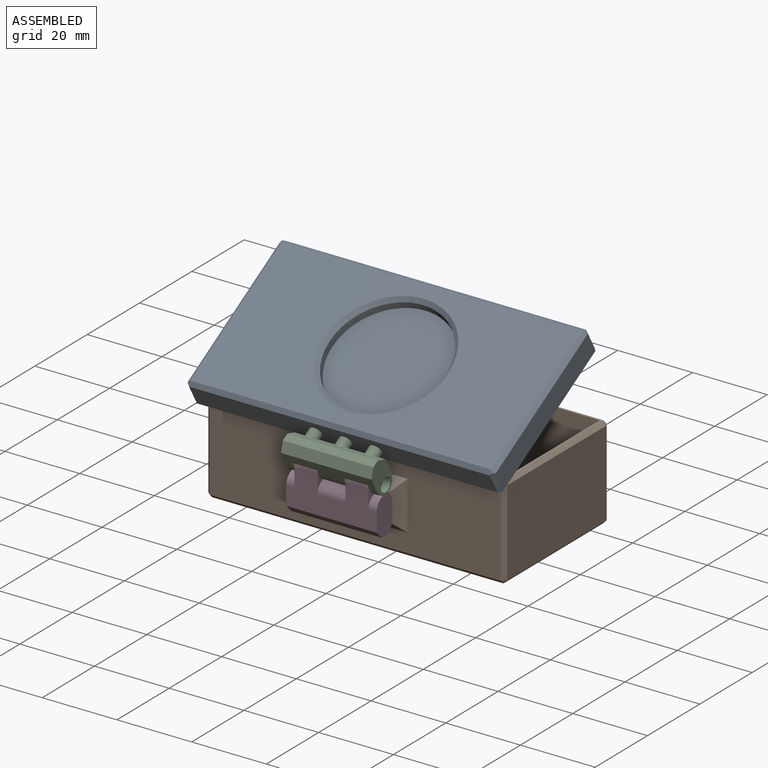
[diagram: assembled view]
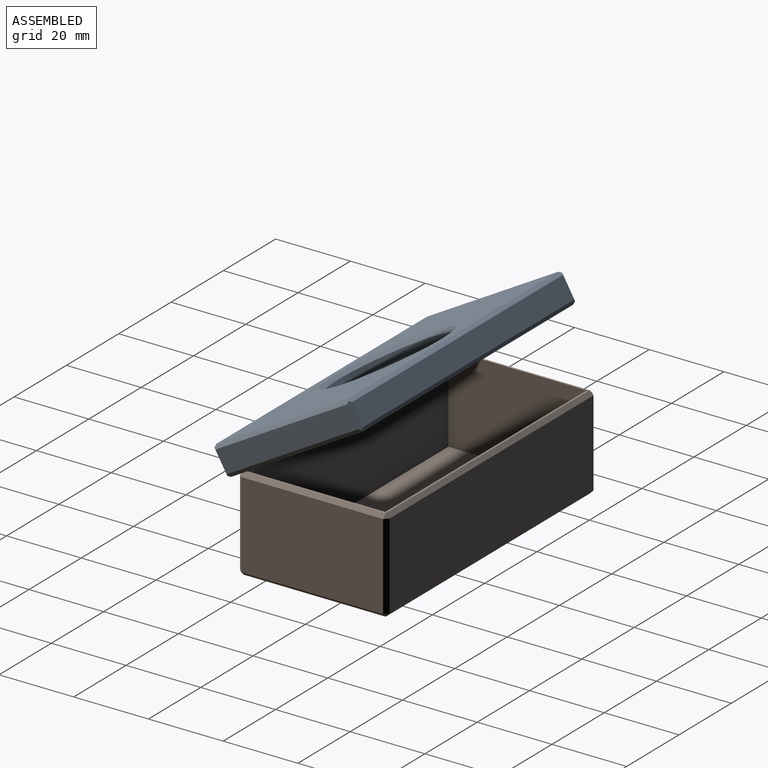
[diagram: assembled view, second angle]
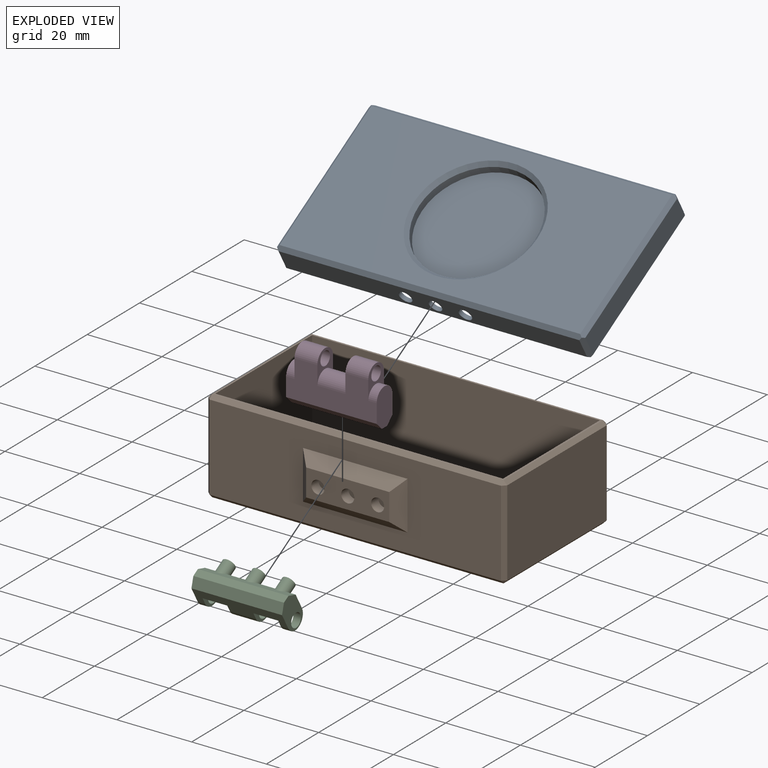
[diagram: exploded view]
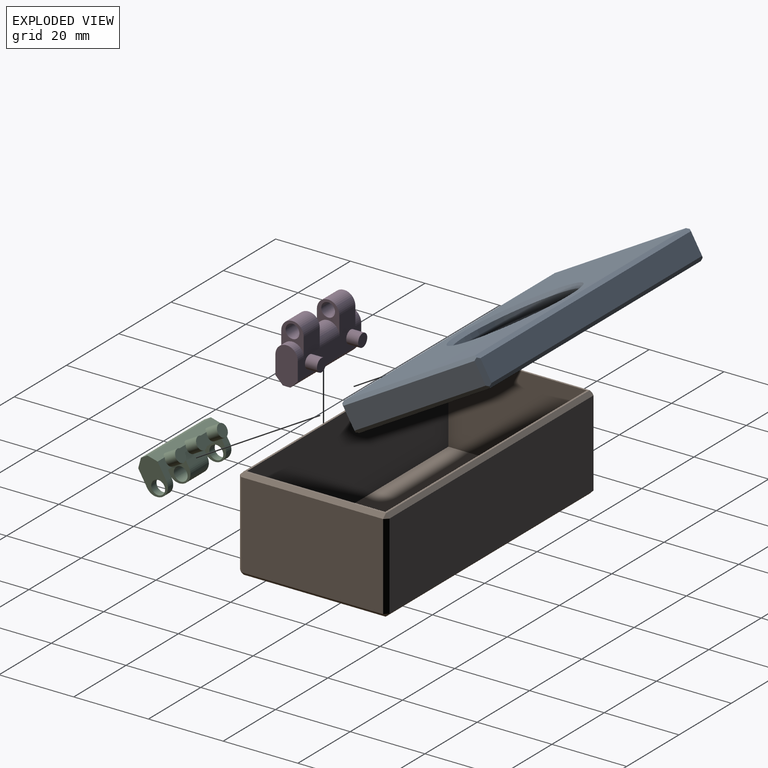
[diagram: exploded view, second angle]
ASSEMBLY  parts=4 mates=3
PART A: 32 faces, bbox 82.5x42.5x8 mm
  f0: plane 80.5x40.5mm, normal (0,0,-1), area 30.2mm2, adj f8,f9,f10,f11,f28,f29,f30,f31
  f1: plane 80.5x6mm, normal (0,-1,0), area 454.1mm2, adj f15,f18,f20,f22,f26,f27,f29
  f2: plane 40.5x6mm, normal (1,0,0), area 243mm2, adj f14,f24,f27,f31
  f3: plane 80.5x6mm, normal (0,1,0), area 483mm2, adj f16,f24,f25,f30
  f4: plane 40.5x6mm, normal (-1,0,0), area 243mm2, adj f17,f25,f26,f28
  f5: plane 80.5x40.5mm, normal (0,0,1), area 2405mm2, adj f13,f14,f15,f16,f17
  f6: cylinder r=15.5mm len=31mm, axis (0,0,1), area 194.8mm2, adj f7,f13
  f7: plane 31x31mm, normal (0,0,1), area 754.8mm2, adj f6
  f8: plane 80.25x4.5mm, normal (0,-1,0), area 361.1mm2, adj f0,f9,f11,f12
  f9: plane 40.25x4.5mm, normal (-1,0,0), area 181.1mm2, adj f0,f8,f10,f12
  f10: plane 80.25x4.5mm, normal (0,1,0), area 336.8mm2, adj f0,f9,f11,f12,f18,f20,f22
  f11: plane 40.25x4.5mm, normal (1,0,0), area 181.1mm2, adj f0,f8,f10,f12
  f12: plane 80.25x40.25mm, normal (0,0,-1), area 3215.6mm2, adj f8,f9,f10,f11,f18,f19,f20,f21
  f13: cone r=15.5mm half-angle=45deg, axis (0,0,1), area 142.2mm2, adj f5,f6
  f14: plane 41.5x1mm, normal (0.71,0,0.71), area 58mm2, adj f2,f5,f15,f16,f24,f27
  f15: plane 81.5x1mm, normal (0,-0.71,0.71), area 114.6mm2, adj f1,f5,f14,f17,f26,f27
  f16: plane 81.5x1mm, normal (0,0.71,0.71), area 114.6mm2, adj f3,f5,f14,f17,f24,f25
  f17: plane 41.5x1mm, normal (-0.71,0,0.71), area 58mm2, adj f4,f5,f15,f16,f25,f26
  f18: cylinder r=1.75mm len=3.5mm, axis (0,-1,0), area 18mm2, adj f1,f10,f12,f19
  f19: plane 2.87x0.75mm, normal (0,-1,0), area 1.5mm2, adj f12,f18
  f20: cylinder r=1.75mm len=3.5mm, axis (0,-1,0), area 18mm2, adj f1,f10,f12,f21
  f21: plane 2.87x0.75mm, normal (0,-1,0), area 1.5mm2, adj f12,f20
  f22: cylinder r=1.75mm len=3.5mm, axis (0,-1,0), area 18mm2, adj f1,f10,f12,f23
  f23: plane 2.87x0.75mm, normal (0,-1,0), area 1.5mm2, adj f12,f22
  f24: plane 7x1mm, normal (0.71,0.71,0), area 9.2mm2, adj f2,f3,f14,f16,f30,f31
  f25: plane 7x1mm, normal (-0.71,0.71,0), area 9.2mm2, adj f3,f4,f16,f17,f28,f30
  f26: plane 7x1mm, normal (-0.71,-0.71,0), area 9.2mm2, adj f1,f4,f15,f17,f28,f29
  f27: plane 7x1mm, normal (0.71,-0.71,0), area 9.2mm2, adj f1,f2,f14,f15,f29,f31
  f28: plane 41.5x1mm, normal (-0.71,0,-0.71), area 58mm2, adj f0,f4,f25,f26,f29,f30
  f29: plane 81.5x1mm, normal (0,-0.71,-0.71), area 114.6mm2, adj f0,f1,f26,f27,f28,f31
  f30: plane 81.5x1mm, normal (0,0.71,-0.71), area 114.6mm2, adj f0,f3,f24,f25,f28,f31
  f31: plane 41.5x1mm, normal (0.71,0,-0.71), area 58mm2, adj f0,f2,f24,f27,f29,f30
PART B: 42 faces, bbox 80x42.9x25 mm
  f0: plane 78x23mm, normal (0,-1,0), area 1430mm2, adj f16,f25,f26,f30,f32,f33,f34,f35
  f1: plane 78x38mm, normal (0,0,1), area 115mm2, adj f6,f7,f8,f9,f19,f24,f27,f30
  f2: plane 38x23mm, normal (1,0,0), area 874mm2, adj f14,f15,f24,f25
  f3: plane 78x23mm, normal (0,1,0), area 1794mm2, adj f11,f14,f18,f19
  f4: plane 38x23mm, normal (-1,0,0), area 874mm2, adj f17,f18,f26,f27
  f5: plane 78x38mm, normal (0,0,-1), area 2964mm2, adj f11,f15,f16,f17
  f6: plane 77x23.5mm, normal (0,1,0), area 1809.5mm2, adj f1,f7,f9,f10
  f7: plane 37x23.5mm, normal (-1,0,0), area 869.5mm2, adj f1,f6,f8,f10
  f8: plane 77x23.5mm, normal (0,-1,0), area 1809.5mm2, adj f1,f7,f9,f10
  f9: plane 37x23.5mm, normal (1,0,0), area 869.5mm2, adj f1,f6,f8,f10
  f10: plane 77x37mm, normal (0,0,1), area 2849mm2, adj f6,f7,f8,f9
  f11: plane 78x1mm, normal (0,0.71,-0.71), area 110.3mm2, adj f3,f5,f12,f13
  f12: plane 1x1mm, normal (0.58,0.58,-0.58), area 0.9mm2, adj f11,f14,f15
  f13: plane 1x1mm, normal (-0.58,0.58,-0.58), area 0.9mm2, adj f11,f17,f18
  f14: plane 23x1mm, normal (0.71,0.71,0), area 32.5mm2, adj f2,f3,f12,f20
  f15: plane 38x1mm, normal (0.71,0,-0.71), area 53.7mm2, adj f2,f5,f12,f21
  f16: plane 78x1mm, normal (0,-0.71,-0.71), area 110.3mm2, adj f0,f5,f21,f22
  f17: plane 38x1mm, normal (-0.71,0,-0.71), area 53.7mm2, adj f4,f5,f13,f22
  f18: plane 23x1mm, normal (-0.71,0.71,0), area 32.5mm2, adj f3,f4,f13,f23
  f19: plane 78x1mm, normal (0,0.71,0.71), area 110.3mm2, adj f1,f3,f20,f23
  f20: plane 1x1mm, normal (0.58,0.58,0.58), area 0.9mm2, adj f14,f19,f24
  f21: plane 1x1mm, normal (0.58,-0.58,-0.58), area 0.9mm2, adj f15,f16,f25
  f22: plane 1x1mm, normal (-0.58,-0.58,-0.58), area 0.9mm2, adj f16,f17,f26
  f23: plane 1x1mm, normal (-0.58,0.58,0.58), area 0.9mm2, adj f18,f19,f27
  f24: plane 38x1mm, normal (0.71,0,0.71), area 53.7mm2, adj f1,f2,f20,f28
  f25: plane 23x1mm, normal (0.71,-0.71,0), area 32.5mm2, adj f0,f2,f21,f28
  f26: plane 23x1mm, normal (-0.71,-0.71,0), area 32.5mm2, adj f0,f4,f22,f29
  f27: plane 38x1mm, normal (-0.71,0,0.71), area 53.7mm2, adj f1,f4,f23,f29
  f28: plane 1x1mm, normal (0.58,-0.58,0.58), area 0.9mm2, adj f24,f25,f30
  f29: plane 1x1mm, normal (-0.58,-0.58,0.58), area 0.9mm2, adj f26,f27,f30
  f30: plane 78x1mm, normal (0,-0.71,0.71), area 110.3mm2, adj f0,f1,f28,f29
  f31: plane 22.25x7.25mm, normal (0,-1,0), area 132.4mm2, adj f32,f33,f34,f35,f36,f38,f40
  f32: plane 28x2.88mm, normal (0,-0.71,-0.71), area 102.2mm2, adj f0,f31,f33,f34
  f33: plane 13x2.88mm, normal (0.71,-0.71,0), area 41.2mm2, adj f0,f31,f32,f35
  f34: plane 13x2.88mm, normal (-0.71,-0.71,0), area 41.2mm2, adj f0,f31,f32,f35
  f35: plane 28x2.88mm, normal (0,-0.71,0.71), area 102.2mm2, adj f0,f31,f33,f34
  f36: cylinder r=1.75mm len=3.5mm, axis (0,-1,0), area 30.8mm2, adj f31,f37
  f37: plane 3.5x3.5mm, normal (0,-1,0), area 9.6mm2, adj f36
  f38: cylinder r=1.75mm len=3.5mm, axis (0,-1,0), area 30.8mm2, adj f31,f39
  f39: plane 3.5x3.5mm, normal (0,-1,0), area 9.6mm2, adj f38
  f40: cylinder r=1.75mm len=3.5mm, axis (0,-1,0), area 30.8mm2, adj f31,f41
  f41: plane 3.5x3.5mm, normal (0,-1,0), area 9.6mm2, adj f40
PART C: 25 faces, bbox 9.8x9.2x24.3 mm
  f0: plane 24.25x4.75mm, normal (0,-1,0), area 88.7mm2, adj f2,f3,f4,f5,f6,f7,f8,f9
  f1: plane 24.25x4.75mm, normal (0,1,0), area 65.5mm2, adj f2,f3,f4,f5,f6,f7,f8,f9
  f2: plane 9.75x6mm, normal (0,0,1), area 39.9mm2, adj f0,f1,f10,f13,f16,f23,f24
  f3: plane 9.75x6mm, normal (0,0,-1), area 39.9mm2, adj f0,f1,f12,f15,f16,f23,f24
  f4: plane 6x5mm, normal (0,0,1), area 15.4mm2, adj f0,f1,f5,f12,f15
  f5: plane 6.63x6mm, normal (1,0,0), area 39.8mm2, adj f0,f1,f4,f6
  f6: plane 6x5mm, normal (0,0,-1), area 15.4mm2, adj f0,f1,f5,f11,f14
  f7: plane 6x5mm, normal (0,0,1), area 15.4mm2, adj f0,f1,f8,f11,f14
  f8: plane 6.63x6mm, normal (1,0,0), area 39.8mm2, adj f0,f1,f7,f9
  f9: plane 6x5mm, normal (0,0,-1), area 15.4mm2, adj f0,f1,f8,f10,f13
  f10: cylinder r=3mm len=6mm, axis (0,0,1), area 18.8mm2, adj f0,f1,f2,f9
  f11: cylinder r=3mm len=7mm, axis (0,0,1), area 66mm2, adj f0,f1,f6,f7
  f12: cylinder r=3mm len=6mm, axis (0,0,1), area 18.8mm2, adj f0,f1,f3,f4
  f13: cylinder r=1.85mm len=3.7mm, axis (0,0,-1), area 23.2mm2, adj f2,f9
  f14: cylinder r=1.85mm len=7mm, axis (0,0,-1), area 81.4mm2, adj f6,f7
  f15: cylinder r=1.85mm len=3.7mm, axis (0,0,-1), area 23.2mm2, adj f3,f4
  f16: plane 24.25x2mm, normal (-1,0,0), area 48.5mm2, adj f2,f3,f23,f24
  f17: cylinder r=1.7mm len=3.9mm, axis (0,-1,0), area 35.7mm2, adj f1,f18,f23
  f18: plane 3.4x3.4mm, normal (0,1,0), area 9.1mm2, adj f17
  f19: cylinder r=1.7mm len=3.9mm, axis (0,-1,0), area 35.7mm2, adj f1,f20,f23
  f20: plane 3.4x3.4mm, normal (0,1,0), area 9.1mm2, adj f19
  f21: cylinder r=1.7mm len=3.9mm, axis (0,-1,0), area 35.7mm2, adj f1,f22,f23
  f22: plane 3.4x3.4mm, normal (0,1,0), area 9.1mm2, adj f21
  f23: plane 24.25x2mm, normal (-0.71,0.71,0), area 62.9mm2, adj f1,f2,f3,f16,f17,f19,f21
  f24: plane 24.25x2mm, normal (-0.71,-0.71,0), area 68.6mm2, adj f0,f2,f3,f16
PART D: 22 faces, bbox 15x9.2x24.3 mm
  f0: plane 10x6mm, normal (0,0,-1), area 52.1mm2, adj f2,f3,f10,f15,f20,f21
  f1: plane 10x6mm, normal (0,0,1), area 52.1mm2, adj f2,f3,f12,f15,f20,f21
  f2: plane 24.25x10mm, normal (0,-1,0), area 182.5mm2, adj f0,f1,f4,f5,f6,f7,f8,f9
  f3: plane 24.25x10mm, normal (0,1,0), area 163.5mm2, adj f0,f1,f4,f5,f6,f7,f8,f9
  f4: plane 8x6mm, normal (0,0,-1), area 19.2mm2, adj f2,f3,f8,f10,f14
  f5: plane 8x6mm, normal (0,0,1), area 19.2mm2, adj f2,f3,f8,f11,f14
  f6: plane 8x6mm, normal (0,0,-1), area 19.2mm2, adj f2,f3,f9,f11,f13
  f7: plane 8x6mm, normal (0,0,1), area 19.2mm2, adj f2,f3,f9,f12,f13
  f8: cylinder r=3mm len=6.13mm, axis (0,0,-1), area 57.7mm2, adj f2,f3,f4,f5
  f9: cylinder r=3mm len=6.13mm, axis (0,0,-1), area 57.7mm2, adj f2,f3,f6,f7
  f10: cylinder r=3mm len=6mm, axis (0,0,-1), area 21.2mm2, adj f0,f2,f3,f4
  f11: cylinder r=3mm len=7.5mm, axis (0,0,-1), area 70.7mm2, adj f2,f3,f5,f6
  f12: cylinder r=3mm len=6mm, axis (0,0,-1), area 21.2mm2, adj f1,f2,f3,f7
  f13: cylinder r=1.85mm len=6.13mm, axis (0,0,-1), area 71.2mm2, adj f6,f7
  f14: cylinder r=1.85mm len=6.13mm, axis (0,0,-1), area 71.2mm2, adj f4,f5
  f15: plane 24.25x2mm, normal (1,0,0), area 48.5mm2, adj f0,f1,f20,f21
  f16: plane 3.48x3.48mm, normal (0,1,0), area 9.5mm2, adj f17
  f17: cylinder r=1.74mm len=3.48mm, axis (0,-1,0), area 35mm2, adj f3,f16
  f18: plane 3.48x3.48mm, normal (0,1,0), area 9.5mm2, adj f19
  f19: cylinder r=1.74mm len=3.48mm, axis (0,-1,0), area 35mm2, adj f3,f18
  f20: plane 24.25x2mm, normal (0.71,0.71,0), area 68.6mm2, adj f0,f1,f3,f15
  f21: plane 24.25x2mm, normal (0.71,-0.71,0), area 68.6mm2, adj f0,f1,f2,f15
PLACE A rot(axis=(1,0,0),30deg) t=(14.86,12.82,22.25)mm
PLACE B t=(14.97,18.29,-13.91)mm
PLACE C rot(axis=(0.25,0.94,0.25),93.8deg) t=(15.34,-4.14,4.96)mm
PLACE D rot(axis=(0,1,0),90deg) t=(15.09,-4.98,3.13)mm
MATE fastened D.f17 <-> B.f40  axis (0,1,0) through (6.97,-1.78,-1.74)mm
MATE fastened C.f19 <-> A.f20  axis (0,0.87,0.5) through (15.36,-4.86,12.63)mm
MATE revolute D.f13 <-> C.f13  axis (-1,0,0) through (5.21,-7.98,5.63)mm
